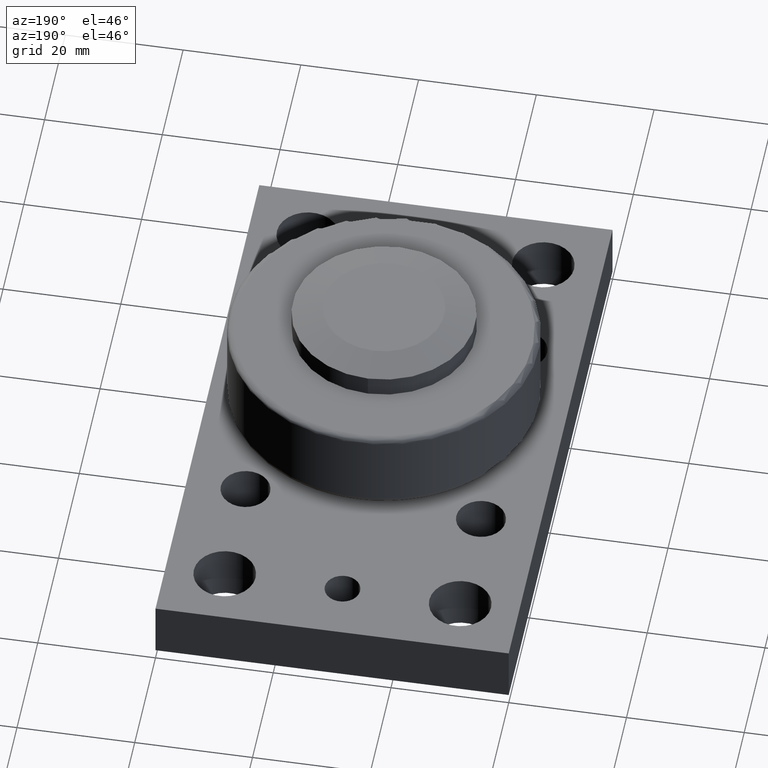
[diagram: clean part render]
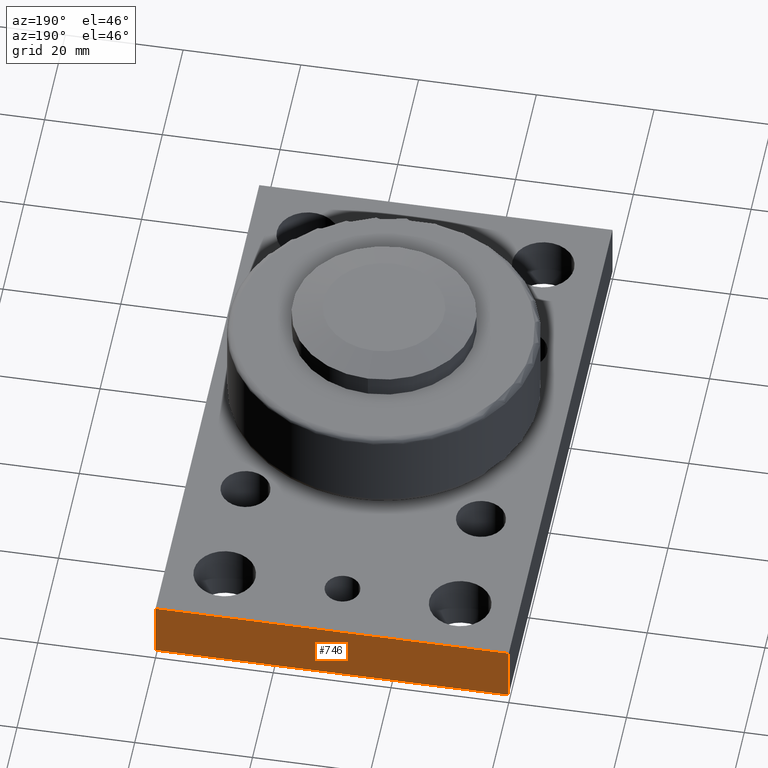
[diagram: same view with one face highlighted and labeled with its STEP entity id]
A machine part, auxiliary view. The second image highlights one B-rep face of the part: STEP entity #746.
In plain terms, the highlighted planar face has unit normal (0, 1, 0).
Its self-contained STEP definition (entity closure, byte-faithful):
#292=CARTESIAN_POINT('',(-2.723482E-014,100.0,10.0));
#293=VERTEX_POINT('',#292);
#308=CARTESIAN_POINT('',(59.999999999999986,100.0,10.0));
#309=VERTEX_POINT('',#308);
#316=CARTESIAN_POINT('',(-2.723482E-014,100.0,10.0));
#317=DIRECTION('',(1.0,0.0,0.0));
#318=VECTOR('',#317,60.000000000000007);
#319=LINE('',#316,#318);
#320=EDGE_CURVE('',#293,#309,#319,.T.);
#453=CARTESIAN_POINT('',(-2.723482E-014,100.0,0.0));
#454=VERTEX_POINT('',#453);
#461=CARTESIAN_POINT('',(59.999999999999986,100.0,0.0));
#462=VERTEX_POINT('',#461);
#463=CARTESIAN_POINT('',(59.999999999999986,100.0,0.0));
#464=DIRECTION('',(-1.0,0.0,0.0));
#465=VECTOR('',#464,60.000000000000007);
#466=LINE('',#463,#465);
#467=EDGE_CURVE('',#462,#454,#466,.T.);
#714=CARTESIAN_POINT('',(-2.723482E-014,100.0,0.0));
#715=DIRECTION('',(0.0,0.0,1.0));
#716=VECTOR('',#715,10.0);
#717=LINE('',#714,#716);
#718=EDGE_CURVE('',#454,#293,#717,.T.);
#730=CARTESIAN_POINT('',(-2.723482E-014,100.0,0.0));
#731=DIRECTION('',(0.0,1.0,0.0));
#732=DIRECTION('',(0.0,0.0,1.0));
#733=AXIS2_PLACEMENT_3D('',#730,#731,#732);
#734=PLANE('',#733);
#735=ORIENTED_EDGE('',*,*,#320,.T.);
#736=CARTESIAN_POINT('',(59.999999999999986,100.0,0.0));
#737=DIRECTION('',(0.0,0.0,1.0));
#738=VECTOR('',#737,10.0);
#739=LINE('',#736,#738);
#740=EDGE_CURVE('',#462,#309,#739,.T.);
#741=ORIENTED_EDGE('',*,*,#740,.F.);
#742=ORIENTED_EDGE('',*,*,#467,.T.);
#743=ORIENTED_EDGE('',*,*,#718,.T.);
#744=EDGE_LOOP('',(#735,#741,#742,#743));
#745=FACE_OUTER_BOUND('',#744,.T.);
#746=ADVANCED_FACE('',(#745),#734,.T.);